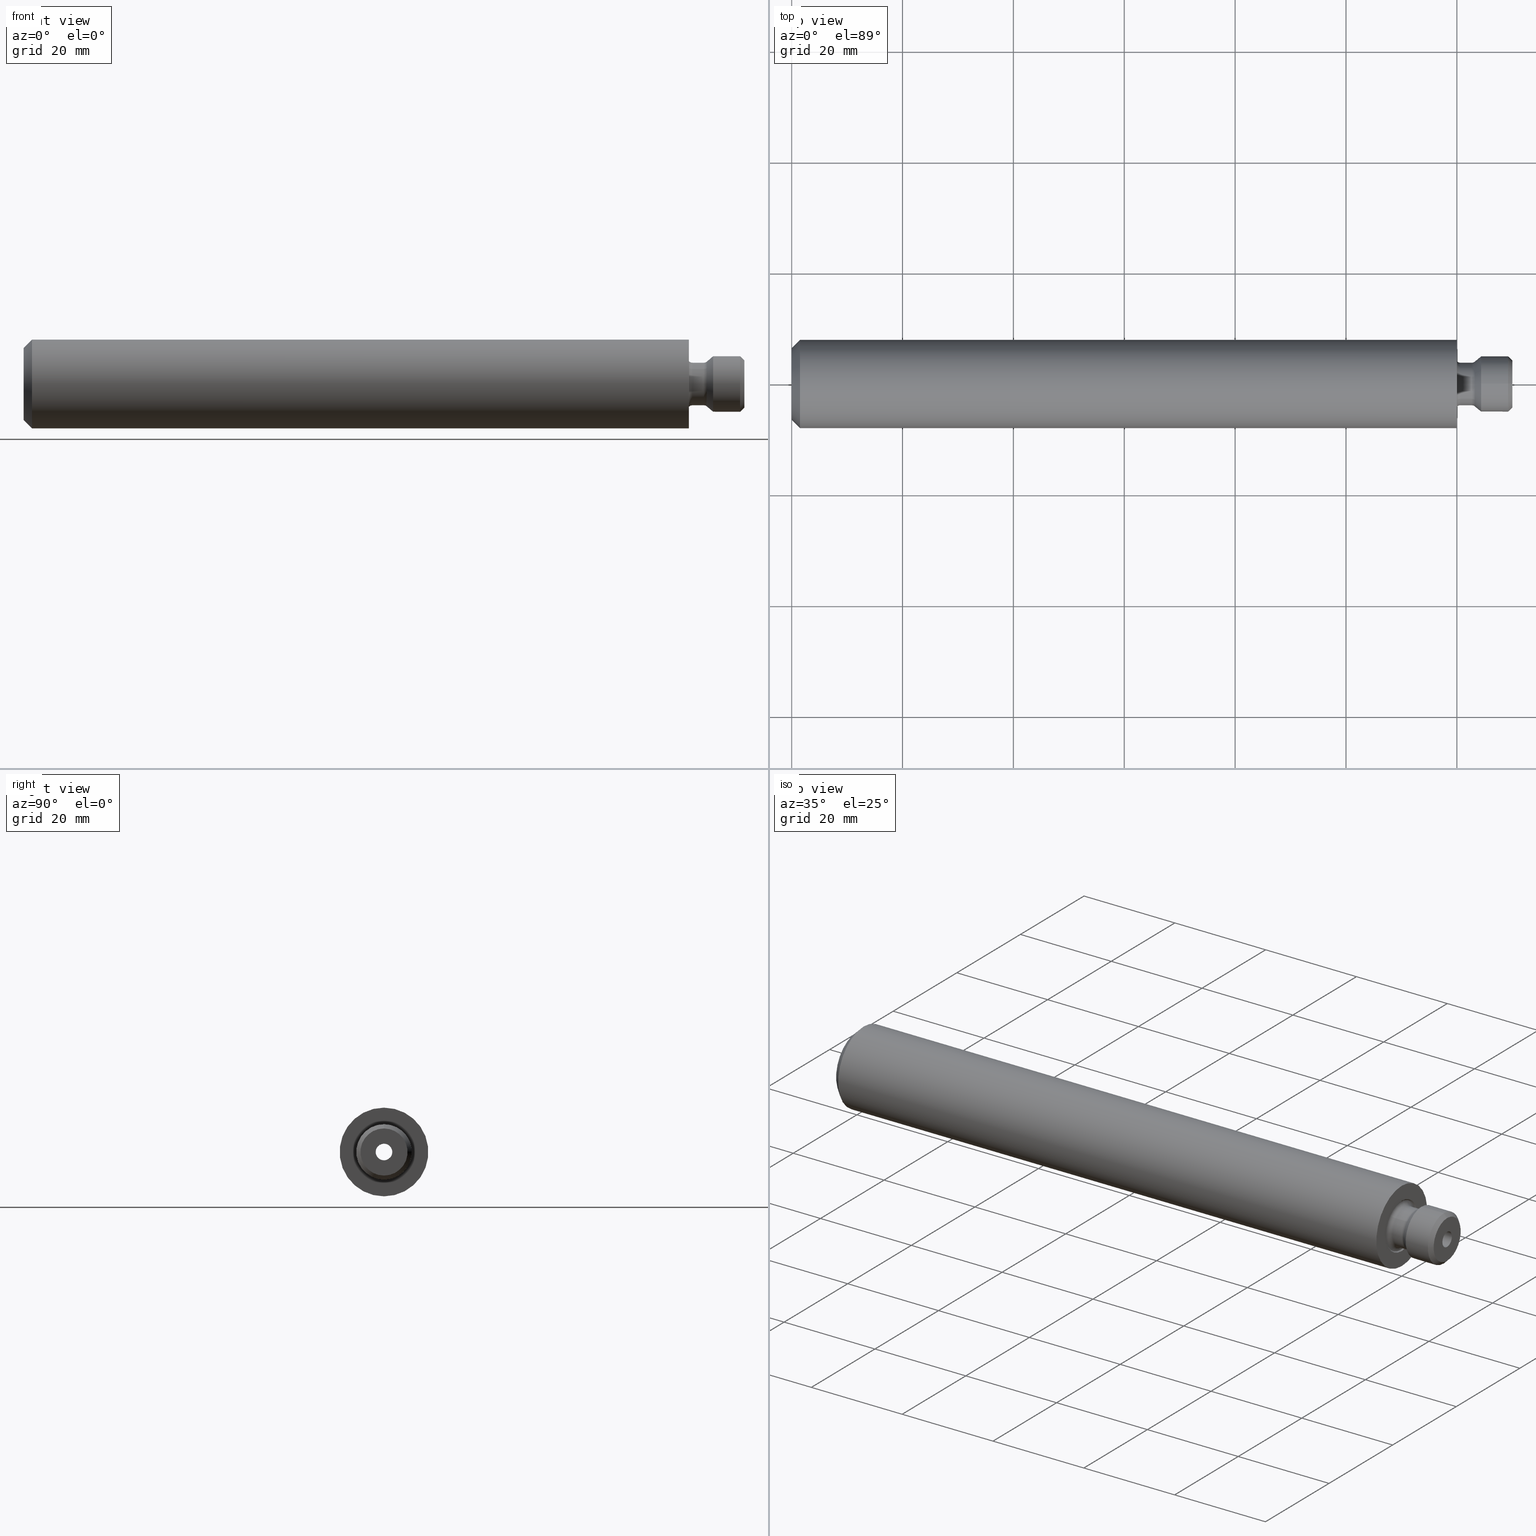
[diagram: canonical four-view strip — front | top / right | iso, engineering-drawing reading convention]
A machine part, canonical four-view strip (front | top / right | iso — engineering-drawing reading convention). The complete STEP part file that produces these views, byte-faithful:
ISO-10303-21;
HEADER;
FILE_DESCRIPTION (( 'STEP AP214' ),
    '1' );
FILE_NAME ('U16.HS0.K01.120.STEP',
    '2020-08-14T11:01:39',
    ( '' ),
    ( '' ),
    'SwSTEP 2.0',
    'SolidWorks 2017',
    '' );
FILE_SCHEMA (( 'AUTOMOTIVE_DESIGN' ));
ENDSEC;

DATA;
#1 = CARTESIAN_POINT ( 'NONE',  ( -120.0000000000000000, 2.499999999999985800, 0.0000000000000000000 ) ) ;
#2 = APPLICATION_CONTEXT ( 'automotive_design' ) ;
#3 = DIRECTION ( 'NONE',  ( -1.000000000000000000, 0.0000000000000000000, -0.0000000000000000000 ) ) ;
#4 = ORIENTED_EDGE ( 'NONE', *, *, #439, .F. ) ;
#5 = VERTEX_POINT ( 'NONE', #116 ) ;
#6 = EDGE_CURVE ( 'NONE', #234, #234, #353, .T. ) ;
#7 = APPLICATION_CONTEXT ( 'automotive_design' ) ;
#8 = AXIS2_PLACEMENT_3D ( 'NONE', #115, #39, #406 ) ;
#9 = CARTESIAN_POINT ( 'NONE',  ( -118.5000000000000000, 0.0000000000000000000, 0.0000000000000000000 ) ) ;
#10 = AXIS2_PLACEMENT_3D ( 'NONE', #202, #78, #38 ) ;
#11 = DIRECTION ( 'NONE',  ( 0.0000000000000000000, 0.0000000000000000000, -1.000000000000000000 ) ) ;
#12 = AXIS2_PLACEMENT_3D ( 'NONE', #349, #223, #247 ) ;
#13 = UNCERTAINTY_MEASURE_WITH_UNIT (LENGTH_MEASURE( 1.000000000000000100E-005 ), #424, 'distance_accuracy_value', 'NONE');
#14 = FACE_OUTER_BOUND ( 'NONE', #210, .T. ) ;
#15 = CONTEXT_DEPENDENT_SHAPE_REPRESENTATION ( #386, #413 ) ;
#16 = CIRCLE ( 'NONE', #124, 4.250000000000000000 ) ;
#17 = VERTEX_POINT ( 'NONE', #195 ) ;
#18 = EDGE_LOOP ( 'NONE', ( #220 ) ) ;
#19 = AXIS2_PLACEMENT_3D ( 'NONE', #283, #246, #491 ) ;
#20 = UNCERTAINTY_MEASURE_WITH_UNIT (LENGTH_MEASURE( 1.000000000000000100E-005 ), #254, 'distance_accuracy_value', 'NONE');
#21 = PRODUCT_DEFINITION ( 'UNKNOWN', '', #101, #29 ) ;
#22 = ORIENTED_EDGE ( 'NONE', *, *, #445, .T. ) ;
#23 = CIRCLE ( 'NONE', #414, 4.249999999999997300 ) ;
#24 = UNCERTAINTY_MEASURE_WITH_UNIT (LENGTH_MEASURE( 1.000000000000000100E-005 ), #380, 'distance_accuracy_value', 'NONE');
#25 = DIRECTION ( 'NONE',  ( 0.0000000000000000000, 0.7063617796963104200, 0.7078509985754494200 ) ) ;
#26 = CIRCLE ( 'NONE', #290, 2.499999999999985800 ) ;
#27 = FACE_OUTER_BOUND ( 'NONE', #229, .T. ) ;
#28 = EDGE_CURVE ( 'NONE', #474, #474, #529, .T. ) ;
#29 = PRODUCT_DEFINITION_CONTEXT ( 'detailed design', #90, 'design' ) ;
#30 = ADVANCED_FACE ( 'NONE', ( #50, #218 ), #357, .F. ) ;
#31 = DIRECTION ( 'NONE',  ( 0.0000000000000000000, 0.0000000000000000000, 1.000000000000000000 ) ) ;
#32 = EDGE_LOOP ( 'NONE', ( #523 ) ) ;
#33 = SHAPE_REPRESENTATION_RELATIONSHIP ( 'NONE' , 'NONE' ,  #168, #447 ) ;
#34 = EDGE_LOOP ( 'NONE', ( #315 ) ) ;
#35 = CARTESIAN_POINT ( 'NONE',  ( 19.57051663148333600, 0.0000000000000000000, 0.0000000000000000000 ) ) ;
#36 = DIRECTION ( 'NONE',  ( 0.0000000000000000000, -0.7063617796963105300, -0.7078509985754494200 ) ) ;
#37 =( GEOMETRIC_REPRESENTATION_CONTEXT ( 3 ) GLOBAL_UNCERTAINTY_ASSIGNED_CONTEXT ( ( #459 ) ) GLOBAL_UNIT_ASSIGNED_CONTEXT ( ( #288, #245, #257 ) ) REPRESENTATION_CONTEXT ( 'NONE', 'WORKASPACE' ) );
#38 = DIRECTION ( 'NONE',  ( 0.0000000000000000000, 0.0000000000000000000, 1.000000000000000000 ) ) ;
#39 = DIRECTION ( 'NONE',  ( 1.000000000000000000, 0.0000000000000000000, 0.0000000000000000000 ) ) ;
#40 = FACE_OUTER_BOUND ( 'NONE', #207, .T. ) ;
#41 = ITEM_DEFINED_TRANSFORMATION ( 'NONE', 'NONE', #191,  #264 ) ;
#42 = PRESENTATION_LAYER_ASSIGNMENT (  '', '', ( #151 ) ) ;
#43 = VERTEX_POINT ( 'NONE', #539 ) ;
#44 = CARTESIAN_POINT ( 'NONE',  ( -0.7500000000000006700, 0.0000000000000000000, -4.250000000000000000 ) ) ;
#45 =( NAMED_UNIT ( * ) PLANE_ANGLE_UNIT ( ) SI_UNIT ( $, .RADIAN. ) );
#46 = SURFACE_SIDE_STYLE ('',( #337 ) ) ;
#47 =( NAMED_UNIT ( * ) SI_UNIT ( $, .STERADIAN. ) SOLID_ANGLE_UNIT ( ) );
#48 = DIRECTION ( 'NONE',  ( -0.0000000000000000000, 0.0000000000000000000, 1.000000000000000000 ) ) ;
#49 =( NAMED_UNIT ( * ) PLANE_ANGLE_UNIT ( ) SI_UNIT ( $, .RADIAN. ) );
#50 = FACE_OUTER_BOUND ( 'NONE', #171, .T. ) ;
#51 = CIRCLE ( 'NONE', #524, 3.850000000000001000 ) ;
#52 = MECHANICAL_DESIGN_GEOMETRIC_PRESENTATION_REPRESENTATION (  '', ( #484 ), #128 ) ;
#53 =( NAMED_UNIT ( * ) PLANE_ANGLE_UNIT ( ) SI_UNIT ( $, .RADIAN. ) );
#54 = DIRECTION ( 'NONE',  ( 1.000000000000000000, 0.0000000000000000000, 0.0000000000000000000 ) ) ;
#55 = AXIS2_PLACEMENT_3D ( 'NONE', #178, #222, #304 ) ;
#56 = DIRECTION ( 'NONE',  ( -1.000000000000000000, -0.0000000000000000000, 0.0000000000000000000 ) ) ;
#57 = FACE_BOUND ( 'NONE', #34, .T. ) ;
#58 = PRODUCT ( 'U16.HS0.K01.120', 'U16.HS0.K01.120', '', ( #175 ) ) ;
#59 = EDGE_LOOP ( 'NONE', ( #360 ) ) ;
#60 = ORIENTED_EDGE ( 'NONE', *, *, #100, .T. ) ;
#61 = FACE_OUTER_BOUND ( 'NONE', #341, .T. ) ;
#62 = AXIS2_PLACEMENT_3D ( 'NONE', #464, #382, #307 ) ;
#63 = SHAPE_DEFINITION_REPRESENTATION ( #197, #516 ) ;
#64 = CARTESIAN_POINT ( 'NONE',  ( -6.375198412698429400, 0.0000000000000000000, 0.0000000000000000000 ) ) ;
#65 = EDGE_CURVE ( 'NONE', #548, #548, #26, .T. ) ;
#66 = CLOSED_SHELL ( 'NONE', ( #443, #236, #538, #531, #284, #274, #501, #336, #528, #540, #150, #156 ) ) ;
#67 = AXIS2_PLACEMENT_3D ( 'NONE', #193, #285, #543 ) ;
#68 = FACE_OUTER_BOUND ( 'NONE', #143, .T. ) ;
#69 = EDGE_LOOP ( 'NONE', ( #521 ) ) ;
#70 = VERTEX_POINT ( 'NONE', #408 ) ;
#71 = DIRECTION ( 'NONE',  ( -1.000000000000000000, -0.0000000000000000000, -0.0000000000000000000 ) ) ;
#72 = ORIENTED_EDGE ( 'NONE', *, *, #514, .T. ) ;
#73 =( LENGTH_UNIT ( ) NAMED_UNIT ( * ) SI_UNIT ( .MILLI., .METRE. ) );
#74 = DIRECTION ( 'NONE',  ( 0.0000000000000000000, 0.0000000000000000000, -1.000000000000000000 ) ) ;
#75 = AXIS2_PLACEMENT_3D ( 'NONE', #239, #508, #87 ) ;
#76 = CARTESIAN_POINT ( 'NONE',  ( -18.00000000000000400, 0.0000000000000000000, 0.0000000000000000000 ) ) ;
#77 = DIRECTION ( 'NONE',  ( -1.000000000000000000, -0.0000000000000000000, -0.0000000000000000000 ) ) ;
#78 = DIRECTION ( 'NONE',  ( -1.000000000000000000, -0.0000000000000000000, -0.0000000000000000000 ) ) ;
#79 = AXIS2_PLACEMENT_3D ( 'NONE', #132, #215, #544 ) ;
#80 = CARTESIAN_POINT ( 'NONE',  ( 24.44999999999999600, 3.531808898481553400, 3.539254992877247200 ) ) ;
#81 = CARTESIAN_POINT ( 'NONE',  ( 15.79999999999999900, 0.0000000000000000000, 0.0000000000000000000 ) ) ;
#82 = EDGE_CURVE ( 'NONE', #434, #434, #224, .T. ) ;
#83 = DIRECTION ( 'NONE',  ( 0.0000000000000000000, 0.0000000000000000000, 1.000000000000000000 ) ) ;
#84 = FACE_BOUND ( 'NONE', #470, .T. ) ;
#85 = FACE_BOUND ( 'NONE', #200, .T. ) ;
#86 = VERTEX_POINT ( 'NONE', #371 ) ;
#87 = DIRECTION ( 'NONE',  ( 1.000000000000000000, 0.0000000000000000000, 0.0000000000000000000 ) ) ;
#88 = AXIS2_PLACEMENT_3D ( 'NONE', #35, #446, #293 ) ;
#89 = DIRECTION ( 'NONE',  ( -1.000000000000000000, -0.0000000000000000000, -0.0000000000000000000 ) ) ;
#90 = APPLICATION_CONTEXT ( 'automotive_design' ) ;
#91 = DIRECTION ( 'NONE',  ( 1.000000000000000000, 0.0000000000000000000, 0.0000000000000000000 ) ) ;
#92 = APPLICATION_PROTOCOL_DEFINITION ( 'draft international standard', 'automotive_design', 1998, #90 ) ;
#93 = AXIS2_PLACEMENT_3D ( 'NONE', #363, #334, #280 ) ;
#94 = CARTESIAN_POINT ( 'NONE',  ( -120.0000000000000000, 0.0000000000000000000, 0.0000000000000000000 ) ) ;
#95 = ORIENTED_EDGE ( 'NONE', *, *, #82, .T. ) ;
#96 = EDGE_CURVE ( 'NONE', #300, #300, #16, .T. ) ;
#97 = AXIS2_PLACEMENT_3D ( 'NONE', #333, #281, #412 ) ;
#98 = ORIENTED_EDGE ( 'NONE', *, *, #411, .T. ) ;
#99 = VERTEX_POINT ( 'NONE', #160 ) ;
#100 = EDGE_CURVE ( 'NONE', #99, #99, #421, .T. ) ;
#101 = PRODUCT_DEFINITION_FORMATION_WITH_SPECIFIED_SOURCE ( 'ANY', '', #397, .NOT_KNOWN. ) ;
#102 = CIRCLE ( 'NONE', #103, 7.999999999999989300 ) ;
#103 = AXIS2_PLACEMENT_3D ( 'NONE', #9, #389, #308 ) ;
#104 = FACE_BOUND ( 'NONE', #530, .T. ) ;
#105 = ADVANCED_FACE ( 'NONE', ( #330, #347 ), #441, .F. ) ;
#106 = FACE_OUTER_BOUND ( 'NONE', #164, .T. ) ;
#107 = CARTESIAN_POINT ( 'NONE',  ( 19.86845502963189200, 0.0000000000000000000, 0.0000000000000000000 ) ) ;
#108 = AXIS2_PLACEMENT_3D ( 'NONE', #451, #534, #112 ) ;
#109 = ADVANCED_FACE ( 'NONE', ( #437, #162 ), #547, .T. ) ;
#110 = CARTESIAN_POINT ( 'NONE',  ( -19.05150608329822500, 0.0000000000000000000, -2.499999999999997300 ) ) ;
#111 = ORIENTED_EDGE ( 'NONE', *, *, #28, .T. ) ;
#112 = DIRECTION ( 'NONE',  ( 0.0000000000000000000, 0.0000000000000000000, -1.000000000000000000 ) ) ;
#113 = ORIENTED_EDGE ( 'NONE', *, *, #391, .T. ) ;
#114 = DIRECTION ( 'NONE',  ( 0.0000000000000000000, 0.7063617796963105300, 0.7078509985754494200 ) ) ;
#115 = CARTESIAN_POINT ( 'NONE',  ( -0.7500000000000006700, 0.0000000000000000000, 0.0000000000000000000 ) ) ;
#116 = CARTESIAN_POINT ( 'NONE',  ( 0.0000000000000000000, 0.0000000000000000000, -7.999999999999989300 ) ) ;
#117 = FILL_AREA_STYLE_COLOUR ( '', #189 ) ;
#118 = CARTESIAN_POINT ( 'NONE',  ( -120.0000000000000000, 0.0000000000000000000, 0.0000000000000000000 ) ) ;
#119 = DIRECTION ( 'NONE',  ( 0.0000000000000000000, 0.7063617796963105300, 0.7078509985754494200 ) ) ;
#120 = AXIS2_PLACEMENT_3D ( 'NONE', #473, #180, #520 ) ;
#121 = ORIENTED_EDGE ( 'NONE', *, *, #439, .T. ) ;
#122 = CYLINDRICAL_SURFACE ( 'NONE', #144, 5.000000000000000000 ) ;
#123 =( NAMED_UNIT ( * ) SI_UNIT ( $, .STERADIAN. ) SOLID_ANGLE_UNIT ( ) );
#124 = AXIS2_PLACEMENT_3D ( 'NONE', #351, #297, #431 ) ;
#125 =( NAMED_UNIT ( * ) SI_UNIT ( $, .STERADIAN. ) SOLID_ANGLE_UNIT ( ) );
#126 =( NAMED_UNIT ( * ) SI_UNIT ( $, .STERADIAN. ) SOLID_ANGLE_UNIT ( ) );
#127 = APPLICATION_CONTEXT ( 'automotive_design' ) ;
#128 =( GEOMETRIC_REPRESENTATION_CONTEXT ( 3 ) GLOBAL_UNCERTAINTY_ASSIGNED_CONTEXT ( ( #24 ) ) GLOBAL_UNIT_ASSIGNED_CONTEXT ( ( #380, #49, #125 ) ) REPRESENTATION_CONTEXT ( 'NONE', 'WORKASPACE' ) );
#129 = VERTEX_POINT ( 'NONE', #158 ) ;
#130 = DIRECTION ( 'NONE',  ( 0.0000000000000000000, 0.0000000000000000000, 1.000000000000000000 ) ) ;
#131 = ORIENTED_EDGE ( 'NONE', *, *, #65, .F. ) ;
#132 = CARTESIAN_POINT ( 'NONE',  ( 11.08730158730159100, 0.0000000000000000000, 0.0000000000000000000 ) ) ;
#133 = MECHANICAL_DESIGN_GEOMETRIC_PRESENTATION_REPRESENTATION (  '', ( #151 ), #381 ) ;
#134 = DIRECTION ( 'NONE',  ( -1.000000000000000000, -0.0000000000000000000, -0.0000000000000000000 ) ) ;
#135 = SHAPE_DEFINITION_REPRESENTATION ( #477, #168 ) ;
#136 = FACE_OUTER_BOUND ( 'NONE', #312, .T. ) ;
#137 = FACE_BOUND ( 'NONE', #138, .T. ) ;
#138 = EDGE_LOOP ( 'NONE', ( #390 ) ) ;
#139 = PRODUCT_DEFINITION ( 'UNKNOWN', '', #425, #149 ) ;
#140 = ORIENTED_EDGE ( 'NONE', *, *, #376, .F. ) ;
#141 = SHAPE_REPRESENTATION_RELATIONSHIP ( 'NONE' , 'NONE' ,  #516, #173 ) ;
#142 = STYLED_ITEM ( 'NONE', ( #433 ), #305 ) ;
#143 = EDGE_LOOP ( 'NONE', ( #479 ) ) ;
#144 = AXIS2_PLACEMENT_3D ( 'NONE', #377, #372, #119 ) ;
#145 = FACE_OUTER_BOUND ( 'NONE', #481, .T. ) ;
#146 = COLOUR_RGB ( '',0.6470588235294118000, 0.6196078431372549200, 0.5882352941176470800 ) ;
#147 = AXIS2_PLACEMENT_3D ( 'NONE', #325, #495, #287 ) ;
#148 = SURFACE_STYLE_FILL_AREA ( #232 ) ;
#149 = PRODUCT_DEFINITION_CONTEXT ( 'detailed design', #550, 'design' ) ;
#150 = ADVANCED_FACE ( 'NONE', ( #267, #136 ), #519, .T. ) ;
#151 = STYLED_ITEM ( 'NONE', ( #419 ), #269 ) ;
#152 = ADVANCED_FACE ( 'NONE', ( #85, #14 ), #170, .T. ) ;
#153 = CARTESIAN_POINT ( 'NONE',  ( 18.42305390033627100, 0.0000000000000000000, 4.037164445504818600 ) ) ;
#154 = EDGE_LOOP ( 'NONE', ( #249 ) ) ;
#155 =( NAMED_UNIT ( * ) SI_UNIT ( $, .STERADIAN. ) SOLID_ANGLE_UNIT ( ) );
#156 = ADVANCED_FACE ( 'NONE', ( #104, #409 ), #542, .T. ) ;
#157 =( GEOMETRIC_REPRESENTATION_CONTEXT ( 3 ) GLOBAL_UNCERTAINTY_ASSIGNED_CONTEXT ( ( #13 ) ) GLOBAL_UNIT_ASSIGNED_CONTEXT ( ( #424, #45, #123 ) ) REPRESENTATION_CONTEXT ( 'NONE', 'WORKASPACE' ) );
#158 = CARTESIAN_POINT ( 'NONE',  ( 25.19999999999999900, 1.059542669544466700, 1.061776497863174300 ) ) ;
#159 = UNCERTAINTY_MEASURE_WITH_UNIT (LENGTH_MEASURE( 1.000000000000000100E-005 ), #340, 'distance_accuracy_value', 'NONE');
#160 = CARTESIAN_POINT ( 'NONE',  ( 0.0000000000000000000, 0.0000000000000000000, -5.000000000000002700 ) ) ;
#161 = FACE_BOUND ( 'NONE', #198, .T. ) ;
#162 = FACE_OUTER_BOUND ( 'NONE', #272, .T. ) ;
#163 = DIRECTION ( 'NONE',  ( 1.000000000000000000, 0.0000000000000000000, 0.0000000000000000000 ) ) ;
#164 = EDGE_LOOP ( 'NONE', ( #428 ) ) ;
#165 = DIRECTION ( 'NONE',  ( 0.0000000000000000000, 0.0000000000000000000, 1.000000000000000000 ) ) ;
#166 = SURFACE_STYLE_USAGE ( .BOTH. , #378 ) ;
#167 = CARTESIAN_POINT ( 'NONE',  ( 15.00000000000000000, 5.000000000000000000, 0.0000000000000000000 ) ) ;
#168 = SHAPE_REPRESENTATION ( 'HM1-BG1.010.025_A', ( #264 ), #157 ) ;
#169 = FILL_AREA_STYLE_COLOUR ( '', #262 ) ;
#170 = CONICAL_SURFACE ( 'NONE', #19, 7.999999999999989300, 0.7853981633974509400 ) ;
#171 = EDGE_LOOP ( 'NONE', ( #60 ) ) ;
#172 = VERTEX_POINT ( 'NONE', #201 ) ;
#173 = ADVANCED_BREP_SHAPE_REPRESENTATION ( '', ( #269, #264 ), #37 ) ;
#174 = DIRECTION ( 'NONE',  ( 0.0000000000000000000, 0.0000000000000000000, -1.000000000000000000 ) ) ;
#175 = PRODUCT_CONTEXT ( 'NONE', #127, 'mechanical' ) ;
#176 = AXIS2_PLACEMENT_3D ( 'NONE', #532, #77, #165 ) ;
#177 =( REPRESENTATION_RELATIONSHIP ('NONE','NONE', #352, #168 ) REPRESENTATION_RELATIONSHIP_WITH_TRANSFORMATION ( #420 )SHAPE_REPRESENTATION_RELATIONSHIP( ) );
#178 = CARTESIAN_POINT ( 'NONE',  ( 0.7500000000000024400, 0.0000000000000000000, 0.0000000000000000000 ) ) ;
#179 = PRODUCT_DEFINITION_CONTEXT ( 'detailed design', #7, 'design' ) ;
#180 = DIRECTION ( 'NONE',  ( 1.000000000000000000, 0.0000000000000000000, 0.0000000000000000000 ) ) ;
#181 = EDGE_LOOP ( 'NONE', ( #4 ) ) ;
#182 = VERTEX_POINT ( 'NONE', #415 ) ;
#183 = EDGE_LOOP ( 'NONE', ( #22 ) ) ;
#184 = EDGE_CURVE ( 'NONE', #366, #366, #498, .T. ) ;
#185 = DIRECTION ( 'NONE',  ( 0.0000000000000000000, 0.0000000000000000000, -1.000000000000000000 ) ) ;
#186 = PRESENTATION_LAYER_ASSIGNMENT (  '', '', ( #216 ) ) ;
#187 = COLOUR_RGB ( '',0.6470588235294118000, 0.6196078431372549200, 0.5882352941176470800 ) ;
#188 = AXIS2_PLACEMENT_3D ( 'NONE', #326, #71, #365 ) ;
#189 = COLOUR_RGB ( '',0.5490196078431373000, 0.5372549019607842900, 0.5294117647058823600 ) ;
#190 = EDGE_LOOP ( 'NONE', ( #401 ) ) ;
#191 = AXIS2_PLACEMENT_3D ( 'NONE', #343, #385, #346 ) ;
#192 = ORIENTED_EDGE ( 'NONE', *, *, #514, .F. ) ;
#193 = CARTESIAN_POINT ( 'NONE',  ( 0.0000000000000000000, 1.500000000000000000, 0.0000000000000000000 ) ) ;
#194 = AXIS2_PLACEMENT_3D ( 'NONE', #410, #497, #291 ) ;
#195 = CARTESIAN_POINT ( 'NONE',  ( 15.00000000000000000, 0.0000000000000000000, 5.000000000000000000 ) ) ;
#196 = CIRCLE ( 'NONE', #301, 4.250000000000000000 ) ;
#197 = PRODUCT_DEFINITION_SHAPE ( 'NONE', 'NONE',  #21 ) ;
#198 = EDGE_LOOP ( 'NONE', ( #452 ) ) ;
#199 = CARTESIAN_POINT ( 'NONE',  ( 24.44999999999999600, 9.508899211970429500E-016, 7.781577171327633800E-017 ) ) ;
#200 = EDGE_LOOP ( 'NONE', ( #423 ) ) ;
#201 = CARTESIAN_POINT ( 'NONE',  ( 19.57051663148333600, 0.0000000000000000000, -5.000000000000000000 ) ) ;
#202 = CARTESIAN_POINT ( 'NONE',  ( -6.375198412698429400, 0.0000000000000000000, 0.0000000000000000000 ) ) ;
#203 = DIRECTION ( 'NONE',  ( 1.000000000000000000, 0.0000000000000000000, 0.0000000000000000000 ) ) ;
#204 = CARTESIAN_POINT ( 'NONE',  ( 0.0000000000000000000, 0.0000000000000000000, 0.0000000000000000000 ) ) ;
#205 = APPLICATION_PROTOCOL_DEFINITION ( 'draft international standard', 'automotive_design', 1998, #550 ) ;
#206 = CARTESIAN_POINT ( 'NONE',  ( -19.05150608329822500, 0.0000000000000000000, 0.0000000000000000000 ) ) ;
#207 = EDGE_LOOP ( 'NONE', ( #465 ) ) ;
#208 = CYLINDRICAL_SURFACE ( 'NONE', #10, 3.850000000000000100 ) ;
#209 = DIRECTION ( 'NONE',  ( 1.000000000000000000, 0.0000000000000000000, 0.0000000000000000000 ) ) ;
#210 = EDGE_LOOP ( 'NONE', ( #140 ) ) ;
#211 = FILL_AREA_STYLE ('',( #456 ) ) ;
#212 = FILL_AREA_STYLE_COLOUR ( '', #146 ) ;
#213 = CARTESIAN_POINT ( 'NONE',  ( -19.05150608329822500, 0.0000000000000000000, 0.0000000000000000000 ) ) ;
#214 = APPLICATION_PROTOCOL_DEFINITION ( 'draft international standard', 'automotive_design', 1998, #7 ) ;
#215 = DIRECTION ( 'NONE',  ( 1.000000000000000000, 0.0000000000000000000, 0.0000000000000000000 ) ) ;
#216 = STYLED_ITEM ( 'NONE', ( #271 ), #447 ) ;
#217 = DIRECTION ( 'NONE',  ( 1.000000000000000000, 0.0000000000000000000, 0.0000000000000000000 ) ) ;
#218 = FACE_BOUND ( 'NONE', #32, .T. ) ;
#219 = FACE_OUTER_BOUND ( 'NONE', #154, .T. ) ;
#220 = ORIENTED_EDGE ( 'NONE', *, *, #314, .T. ) ;
#221 = EDGE_LOOP ( 'NONE', ( #131 ) ) ;
#222 = DIRECTION ( 'NONE',  ( 1.000000000000000000, 0.0000000000000000000, 0.0000000000000000000 ) ) ;
#223 = DIRECTION ( 'NONE',  ( 1.000000000000000000, 0.0000000000000000000, 0.0000000000000000000 ) ) ;
#224 = CIRCLE ( 'NONE', #541, 1.500000000000000000 ) ;
#225 = CONICAL_SURFACE ( 'NONE', #310, 5.250000000000000000, 0.6981317007977334600 ) ;
#226 = ORIENTED_EDGE ( 'NONE', *, *, #483, .F. ) ;
#227 =( GEOMETRIC_REPRESENTATION_CONTEXT ( 3 ) GLOBAL_UNCERTAINTY_ASSIGNED_CONTEXT ( ( #472 ) ) GLOBAL_UNIT_ASSIGNED_CONTEXT ( ( #388, #298, #47 ) ) REPRESENTATION_CONTEXT ( 'NONE', 'WORKASPACE' ) );
#228 = AXIS2_PLACEMENT_3D ( 'NONE', #253, #517, #185 ) ;
#229 = EDGE_LOOP ( 'NONE', ( #526 ) ) ;
#230 = DIRECTION ( 'NONE',  ( 0.0000000000000000000, 0.0000000000000000000, -1.000000000000000000 ) ) ;
#231 = CYLINDRICAL_SURFACE ( 'NONE', #79, 4.249999999999998200 ) ;
#232 = FILL_AREA_STYLE ('',( #169 ) ) ;
#233 = AXIS2_PLACEMENT_3D ( 'NONE', #462, #418, #217 ) ;
#234 = VERTEX_POINT ( 'NONE', #368 ) ;
#235 = EDGE_LOOP ( 'NONE', ( #72 ) ) ;
#236 = ADVANCED_FACE ( 'NONE', ( #311, #309 ), #299, .F. ) ;
#237 = AXIS2_PLACEMENT_3D ( 'NONE', #505, #89, #251 ) ;
#238 = PLANE ( 'NONE',  #369 ) ;
#239 = CARTESIAN_POINT ( 'NONE',  ( 0.0000000000000000000, 0.0000000000000000000, 0.0000000000000000000 ) ) ;
#240 = ORIENTED_EDGE ( 'NONE', *, *, #483, .T. ) ;
#241 = FACE_OUTER_BOUND ( 'NONE', #59, .T. ) ;
#242 = MECHANICAL_DESIGN_GEOMETRIC_PRESENTATION_REPRESENTATION (  '', ( #216 ), #467 ) ;
#243 = PLANE ( 'NONE',  #67 ) ;
#244 = CARTESIAN_POINT ( 'NONE',  ( 0.0000000000000000000, 0.0000000000000000000, 1.500000000000000000 ) ) ;
#245 =( NAMED_UNIT ( * ) PLANE_ANGLE_UNIT ( ) SI_UNIT ( $, .RADIAN. ) );
#246 = DIRECTION ( 'NONE',  ( 1.000000000000000000, 0.0000000000000000000, 0.0000000000000000000 ) ) ;
#247 = DIRECTION ( 'NONE',  ( 0.0000000000000000000, 0.0000000000000000000, -1.000000000000000000 ) ) ;
#248 = DIRECTION ( 'NONE',  ( 1.000000000000000000, 0.0000000000000000000, 0.0000000000000000000 ) ) ;
#249 = ORIENTED_EDGE ( 'NONE', *, *, #6, .T. ) ;
#250 = FACE_OUTER_BOUND ( 'NONE', #303, .T. ) ;
#251 = DIRECTION ( 'NONE',  ( 0.0000000000000000000, 0.0000000000000000000, 1.000000000000000000 ) ) ;
#252 = ORIENTED_EDGE ( 'NONE', *, *, #411, .F. ) ;
#253 = CARTESIAN_POINT ( 'NONE',  ( 11.08730158730159100, 0.0000000000000000000, 0.0000000000000000000 ) ) ;
#254 =( LENGTH_UNIT ( ) NAMED_UNIT ( * ) SI_UNIT ( .MILLI., .METRE. ) );
#255 =( NAMED_UNIT ( * ) SI_UNIT ( $, .STERADIAN. ) SOLID_ANGLE_UNIT ( ) );
#256 = PRODUCT_RELATED_PRODUCT_CATEGORY ( 'part', '', ( #58 ) ) ;
#257 =( NAMED_UNIT ( * ) SI_UNIT ( $, .STERADIAN. ) SOLID_ANGLE_UNIT ( ) );
#258 = ORIENTED_EDGE ( 'NONE', *, *, #96, .F. ) ;
#259 =( GEOMETRIC_REPRESENTATION_CONTEXT ( 3 ) GLOBAL_UNCERTAINTY_ASSIGNED_CONTEXT ( ( #20 ) ) GLOBAL_UNIT_ASSIGNED_CONTEXT ( ( #254, #296, #126 ) ) REPRESENTATION_CONTEXT ( 'NONE', 'WORKASPACE' ) );
#260 = PRODUCT_CONTEXT ( 'NONE', #510, 'mechanical' ) ;
#261 = CIRCLE ( 'NONE', #266, 4.650000000000000400 ) ;
#262 = COLOUR_RGB ( '',0.5490196078431373000, 0.5372549019607842900, 0.5294117647058823600 ) ;
#263 = EDGE_LOOP ( 'NONE', ( #475 ) ) ;
#264 = AXIS2_PLACEMENT_3D ( 'NONE', #460, #130, #209 ) ;
#265 = PRODUCT_DEFINITION_SHAPE ( 'NONE', 'NONE',  #552 ) ;
#266 = AXIS2_PLACEMENT_3D ( 'NONE', #426, #379, #549 ) ;
#267 = FACE_BOUND ( 'NONE', #317, .T. ) ;
#268 = FACE_OUTER_BOUND ( 'NONE', #18, .T. ) ;
#269 = MANIFOLD_SOLID_BREP ( 'Rotation1', #318 ) ;
#270 = AXIS2_PLACEMENT_3D ( 'NONE', #319, #440, #527 ) ;
#271 = PRESENTATION_STYLE_ASSIGNMENT (( #503 ) ) ;
#272 = EDGE_LOOP ( 'NONE', ( #192 ) ) ;
#273 = DIRECTION ( 'NONE',  ( -1.000000000000000000, -0.0000000000000000000, 0.0000000000000000000 ) ) ;
#274 = ADVANCED_FACE ( 'NONE', ( #545, #84 ), #238, .F. ) ;
#275 = EDGE_CURVE ( 'NONE', #422, #422, #469, .T. ) ;
#276 = TOROIDAL_SURFACE ( 'NONE', #237, 4.650000000000000400, 0.7999999999999994900 ) ;
#277 = ORIENTED_EDGE ( 'NONE', *, *, #362, .F. ) ;
#278 = VERTEX_POINT ( 'NONE', #370 ) ;
#279 = SURFACE_SIDE_STYLE ('',( #358 ) ) ;
#280 = DIRECTION ( 'NONE',  ( 0.0000000000000000000, 0.0000000000000000000, -1.000000000000000000 ) ) ;
#281 = DIRECTION ( 'NONE',  ( -1.000000000000000000, -0.0000000000000000000, -0.0000000000000000000 ) ) ;
#282 = ADVANCED_FACE ( 'NONE', ( #57, #68 ), #348, .T. ) ;
#283 = CARTESIAN_POINT ( 'NONE',  ( -118.5000000000000000, 0.0000000000000000000, 0.0000000000000000000 ) ) ;
#284 = ADVANCED_FACE ( 'NONE', ( #504, #478 ), #276, .F. ) ;
#285 = DIRECTION ( 'NONE',  ( 1.000000000000000000, 0.0000000000000000000, 0.0000000000000000000 ) ) ;
#286 = DIRECTION ( 'NONE',  ( 1.000000000000000000, 0.0000000000000000000, 0.0000000000000000000 ) ) ;
#287 = DIRECTION ( 'NONE',  ( 0.0000000000000000000, 0.0000000000000000000, 1.000000000000000000 ) ) ;
#288 =( LENGTH_UNIT ( ) NAMED_UNIT ( * ) SI_UNIT ( .MILLI., .METRE. ) );
#289 = FACE_BOUND ( 'NONE', #355, .T. ) ;
#290 = AXIS2_PLACEMENT_3D ( 'NONE', #118, #163, #74 ) ;
#291 = DIRECTION ( 'NONE',  ( 0.0000000000000000000, 0.0000000000000000000, 1.000000000000000000 ) ) ;
#292 = ORIENTED_EDGE ( 'NONE', *, *, #493, .T. ) ;
#293 = DIRECTION ( 'NONE',  ( 0.0000000000000000000, 0.0000000000000000000, -1.000000000000000000 ) ) ;
#294 = ORIENTED_EDGE ( 'NONE', *, *, #376, .T. ) ;
#295 = UNCERTAINTY_MEASURE_WITH_UNIT (LENGTH_MEASURE( 1.000000000000000100E-005 ), #73, 'distance_accuracy_value', 'NONE');
#296 =( NAMED_UNIT ( * ) PLANE_ANGLE_UNIT ( ) SI_UNIT ( $, .RADIAN. ) );
#297 = DIRECTION ( 'NONE',  ( -1.000000000000000000, -0.0000000000000000000, -0.0000000000000000000 ) ) ;
#298 =( NAMED_UNIT ( * ) PLANE_ANGLE_UNIT ( ) SI_UNIT ( $, .RADIAN. ) );
#299 = CYLINDRICAL_SURFACE ( 'NONE', #194, 1.500000000000000000 ) ;
#300 = VERTEX_POINT ( 'NONE', #496 ) ;
#301 = AXIS2_PLACEMENT_3D ( 'NONE', #350, #56, #512 ) ;
#302 = SURFACE_STYLE_USAGE ( .BOTH. , #46 ) ;
#303 = EDGE_LOOP ( 'NONE', ( #121 ) ) ;
#304 = DIRECTION ( 'NONE',  ( 0.0000000000000000000, 0.0000000000000000000, -1.000000000000000000 ) ) ;
#305 = MANIFOLD_SOLID_BREP ( 'Rotation1', #66 ) ;
#306 = PRODUCT_CONTEXT ( 'NONE', #2, 'mechanical' ) ;
#307 = DIRECTION ( 'NONE',  ( 0.0000000000000000000, 0.7063617796963105300, 0.7078509985754494200 ) ) ;
#308 = DIRECTION ( 'NONE',  ( 0.0000000000000000000, 0.0000000000000000000, -1.000000000000000000 ) ) ;
#309 = FACE_OUTER_BOUND ( 'NONE', #402, .T. ) ;
#310 = AXIS2_PLACEMENT_3D ( 'NONE', #107, #438, #230 ) ;
#311 = FACE_OUTER_BOUND ( 'NONE', #455, .T. ) ;
#312 = EDGE_LOOP ( 'NONE', ( #375 ) ) ;
#313 = CONICAL_SURFACE ( 'NONE', #55, 5.000000000000000000, 0.7853981633974466100 ) ;
#314 = EDGE_CURVE ( 'NONE', #374, #374, #485, .T. ) ;
#315 = ORIENTED_EDGE ( 'NONE', *, *, #65, .T. ) ;
#316 = MECHANICAL_DESIGN_GEOMETRIC_PRESENTATION_REPRESENTATION (  '', ( #142 ), #259 ) ;
#317 = EDGE_LOOP ( 'NONE', ( #113 ) ) ;
#318 = CLOSED_SHELL ( 'NONE', ( #105, #282, #152, #109, #324, #30, #332, #321 ) ) ;
#319 = CARTESIAN_POINT ( 'NONE',  ( 15.00000000000000000, 0.0000000000000000000, 0.0000000000000000000 ) ) ;
#320 = PRODUCT_DEFINITION_FORMATION_WITH_SPECIFIED_SOURCE ( 'ANY', '', #58, .NOT_KNOWN. ) ;
#321 = ADVANCED_FACE ( 'NONE', ( #535, #161 ), #399, .F. ) ;
#322 = EDGE_LOOP ( 'NONE', ( #404 ) ) ;
#323 = CYLINDRICAL_SURFACE ( 'NONE', #468, 5.000000000000000000 ) ;
#324 = ADVANCED_FACE ( 'NONE', ( #513, #289 ), #387, .T. ) ;
#325 = CARTESIAN_POINT ( 'NONE',  ( 17.90882381258704100, 0.0000000000000000000, 0.0000000000000000000 ) ) ;
#326 = CARTESIAN_POINT ( 'NONE',  ( 0.7500000000000024400, 0.0000000000000000000, 0.0000000000000000000 ) ) ;
#327 = DIRECTION ( 'NONE',  ( -1.000000000000000000, -0.0000000000000000000, -0.0000000000000000000 ) ) ;
#328 = PRODUCT_RELATED_PRODUCT_CATEGORY ( 'part', '', ( #518 ) ) ;
#329 = DIRECTION ( 'NONE',  ( 0.0000000000000000000, 0.0000000000000000000, -1.000000000000000000 ) ) ;
#330 = FACE_OUTER_BOUND ( 'NONE', #322, .T. ) ;
#331 = CIRCLE ( 'NONE', #88, 5.000000000000000000 ) ;
#332 = ADVANCED_FACE ( 'NONE', ( #145, #40 ), #231, .F. ) ;
#333 = CARTESIAN_POINT ( 'NONE',  ( 17.90882381258704100, 0.0000000000000000000, 0.0000000000000000000 ) ) ;
#334 = DIRECTION ( 'NONE',  ( 1.000000000000000000, 0.0000000000000000000, 0.0000000000000000000 ) ) ;
#335 = DIRECTION ( 'NONE',  ( -1.000000000000000000, -0.0000000000000000000, -0.0000000000000000000 ) ) ;
#336 = ADVANCED_FACE ( 'NONE', ( #373, #392 ), #313, .T. ) ;
#337 = SURFACE_STYLE_FILL_AREA ( #211 ) ;
#338 = SHAPE_DEFINITION_REPRESENTATION ( #432, #352 ) ;
#339 = CIRCLE ( 'NONE', #270, 5.000000000000000000 ) ;
#340 =( LENGTH_UNIT ( ) NAMED_UNIT ( * ) SI_UNIT ( .MILLI., .METRE. ) );
#341 = EDGE_LOOP ( 'NONE', ( #490 ) ) ;
#342 = DIRECTION ( 'NONE',  ( -1.000000000000000000, 0.0000000000000000000, 0.0000000000000000000 ) ) ;
#343 = CARTESIAN_POINT ( 'NONE',  ( 0.0000000000000000000, 0.0000000000000000000, 0.0000000000000000000 ) ) ;
#344 = DIRECTION ( 'NONE',  ( 0.0000000000000000000, 0.0000000000000000000, -1.000000000000000000 ) ) ;
#345 = SURFACE_SIDE_STYLE ('',( #525 ) ) ;
#346 = DIRECTION ( 'NONE',  ( 1.000000000000000000, 0.0000000000000000000, 0.0000000000000000000 ) ) ;
#347 = FACE_OUTER_BOUND ( 'NONE', #221, .T. ) ;
#348 = PLANE ( 'NONE',  #537 ) ;
#349 = CARTESIAN_POINT ( 'NONE',  ( 0.0000000000000000000, 0.0000000000000000000, 0.0000000000000000000 ) ) ;
#350 = CARTESIAN_POINT ( 'NONE',  ( 25.19999999999999900, 9.508899211970429500E-016, 7.781577171327633800E-017 ) ) ;
#351 = CARTESIAN_POINT ( 'NONE',  ( 0.0000000000000000000, 0.0000000000000000000, 0.0000000000000000000 ) ) ;
#352 = SHAPE_REPRESENTATION ( 'U16.HS0.K01.120', ( #75, #191, #233 ), #227 ) ;
#353 = CIRCLE ( 'NONE', #147, 3.849999999999999600 ) ;
#354 = FACE_OUTER_BOUND ( 'NONE', #500, .T. ) ;
#355 = EDGE_LOOP ( 'NONE', ( #515 ) ) ;
#356 = ORIENTED_EDGE ( 'NONE', *, *, #362, .T. ) ;
#357 = CONICAL_SURFACE ( 'NONE', #93, 4.250000000000000000, 0.7853981633974511700 ) ;
#358 = SURFACE_STYLE_FILL_AREA ( #407 ) ;
#359 = CIRCLE ( 'NONE', #488, 1.500000000000000200 ) ;
#360 = ORIENTED_EDGE ( 'NONE', *, *, #436, .F. ) ;
#361 = EDGE_LOOP ( 'NONE', ( #294 ) ) ;
#362 = EDGE_CURVE ( 'NONE', #480, #480, #261, .T. ) ;
#363 = CARTESIAN_POINT ( 'NONE',  ( -0.7500000000000006700, 0.0000000000000000000, 0.0000000000000000000 ) ) ;
#364 = PRODUCT_DEFINITION ( 'UNKNOWN', '', #320, #179 ) ;
#365 = DIRECTION ( 'NONE',  ( 0.0000000000000000000, 0.0000000000000000000, 1.000000000000000000 ) ) ;
#366 = VERTEX_POINT ( 'NONE', #153 ) ;
#367 =( NAMED_UNIT ( * ) PLANE_ANGLE_UNIT ( ) SI_UNIT ( $, .RADIAN. ) );
#368 = CARTESIAN_POINT ( 'NONE',  ( 17.90882381258704100, 0.0000000000000000000, 3.849999999999999600 ) ) ;
#369 = AXIS2_PLACEMENT_3D ( 'NONE', #167, #3, #48 ) ;
#370 = CARTESIAN_POINT ( 'NONE',  ( -118.5000000000000000, 0.0000000000000000000, -7.999999999999989300 ) ) ;
#371 = CARTESIAN_POINT ( 'NONE',  ( 25.19999999999999900, 3.002037563709321100, 3.008366743945660300 ) ) ;
#372 = DIRECTION ( 'NONE',  ( -1.000000000000000000, -0.0000000000000000000, 0.0000000000000000000 ) ) ;
#373 = FACE_BOUND ( 'NONE', #506, .T. ) ;
#374 = VERTEX_POINT ( 'NONE', #80 ) ;
#375 = ORIENTED_EDGE ( 'NONE', *, *, #314, .F. ) ;
#376 = EDGE_CURVE ( 'NONE', #278, #278, #102, .T. ) ;
#377 = CARTESIAN_POINT ( 'NONE',  ( 11.48902577285627300, 9.508899211970429500E-016, 7.781577171327633800E-017 ) ) ;
#378 = SURFACE_SIDE_STYLE ('',( #148 ) ) ;
#379 = DIRECTION ( 'NONE',  ( -1.000000000000000000, -0.0000000000000000000, -0.0000000000000000000 ) ) ;
#380 =( LENGTH_UNIT ( ) NAMED_UNIT ( * ) SI_UNIT ( .MILLI., .METRE. ) );
#381 =( GEOMETRIC_REPRESENTATION_CONTEXT ( 3 ) GLOBAL_UNCERTAINTY_ASSIGNED_CONTEXT ( ( #295 ) ) GLOBAL_UNIT_ASSIGNED_CONTEXT ( ( #73, #367, #155 ) ) REPRESENTATION_CONTEXT ( 'NONE', 'WORKASPACE' ) );
#382 = DIRECTION ( 'NONE',  ( -1.000000000000000000, -0.0000000000000000000, 0.0000000000000000000 ) ) ;
#383 = EDGE_LOOP ( 'NONE', ( #292 ) ) ;
#384 = FACE_OUTER_BOUND ( 'NONE', #383, .T. ) ;
#385 = DIRECTION ( 'NONE',  ( 0.0000000000000000000, 0.0000000000000000000, 1.000000000000000000 ) ) ;
#386 =( REPRESENTATION_RELATIONSHIP ('NONE','NONE', #352, #516 ) REPRESENTATION_RELATIONSHIP_WITH_TRANSFORMATION ( #41 )SHAPE_REPRESENTATION_RELATIONSHIP( ) );
#387 = PLANE ( 'NONE',  #449 ) ;
#388 =( LENGTH_UNIT ( ) NAMED_UNIT ( * ) SI_UNIT ( .MILLI., .METRE. ) );
#389 = DIRECTION ( 'NONE',  ( 1.000000000000000000, 0.0000000000000000000, 0.0000000000000000000 ) ) ;
#390 = ORIENTED_EDGE ( 'NONE', *, *, #82, .F. ) ;
#391 = EDGE_CURVE ( 'NONE', #86, #86, #196, .T. ) ;
#392 = FACE_OUTER_BOUND ( 'NONE', #190, .T. ) ;
#393 = EDGE_LOOP ( 'NONE', ( #240 ) ) ;
#394 = CIRCLE ( 'NONE', #461, 6.499999999999979600 ) ;
#395 = PRESENTATION_LAYER_ASSIGNMENT (  '', '', ( #484 ) ) ;
#396 = EDGE_CURVE ( 'NONE', #182, #182, #394, .T. ) ;
#397 = PRODUCT ( 'HM1-U16.001.120_A', 'HM1-U16.001.120_A', '', ( #306 ) ) ;
#398 = PRESENTATION_LAYER_ASSIGNMENT (  '', '', ( #142 ) ) ;
#399 = CONICAL_SURFACE ( 'NONE', #405, 2.499999999999997300, 1.029744258676657600 ) ;
#400 = EDGE_LOOP ( 'NONE', ( #277 ) ) ;
#401 = ORIENTED_EDGE ( 'NONE', *, *, #436, .T. ) ;
#402 = EDGE_LOOP ( 'NONE', ( #95 ) ) ;
#403 = TOROIDAL_SURFACE ( 'NONE', #97, 4.650000000000000400, 0.8000000000000000400 ) ;
#404 = ORIENTED_EDGE ( 'NONE', *, *, #275, .T. ) ;
#405 = AXIS2_PLACEMENT_3D ( 'NONE', #206, #91, #417 ) ;
#406 = DIRECTION ( 'NONE',  ( 0.0000000000000000000, 0.0000000000000000000, -1.000000000000000000 ) ) ;
#407 = FILL_AREA_STYLE ('',( #117 ) ) ;
#408 = CARTESIAN_POINT ( 'NONE',  ( -18.00000000000000400, 0.0000000000000000000, -4.249999999999997300 ) ) ;
#409 = FACE_OUTER_BOUND ( 'NONE', #463, .T. ) ;
#410 = CARTESIAN_POINT ( 'NONE',  ( -6.375198412698429400, 0.0000000000000000000, 0.0000000000000000000 ) ) ;
#411 = EDGE_CURVE ( 'NONE', #129, #129, #359, .T. ) ;
#412 = DIRECTION ( 'NONE',  ( 0.0000000000000000000, 0.0000000000000000000, 1.000000000000000000 ) ) ;
#413 = PRODUCT_DEFINITION_SHAPE ( 'NONE', 'NONE',  #551 ) ;
#414 = AXIS2_PLACEMENT_3D ( 'NONE', #76, #248, #329 ) ;
#415 = CARTESIAN_POINT ( 'NONE',  ( -120.0000000000000000, 0.0000000000000000000, -6.499999999999979600 ) ) ;
#416 = APPLICATION_PROTOCOL_DEFINITION ( 'draft international standard', 'automotive_design', 1998, #2 ) ;
#417 = DIRECTION ( 'NONE',  ( 0.0000000000000000000, 0.0000000000000000000, -1.000000000000000000 ) ) ;
#418 = DIRECTION ( 'NONE',  ( 0.0000000000000000000, -0.7063617796963105300, 0.7078509985754494200 ) ) ;
#419 = PRESENTATION_STYLE_ASSIGNMENT (( #448 ) ) ;
#420 = ITEM_DEFINED_TRANSFORMATION ( 'NONE', 'NONE', #233,  #264 ) ;
#421 = CIRCLE ( 'NONE', #12, 5.000000000000002700 ) ;
#422 = VERTEX_POINT ( 'NONE', #110 ) ;
#423 = ORIENTED_EDGE ( 'NONE', *, *, #396, .T. ) ;
#424 =( LENGTH_UNIT ( ) NAMED_UNIT ( * ) SI_UNIT ( .MILLI., .METRE. ) );
#425 = PRODUCT_DEFINITION_FORMATION_WITH_SPECIFIED_SOURCE ( 'ANY', '', #518, .NOT_KNOWN. ) ;
#426 = CARTESIAN_POINT ( 'NONE',  ( 15.00000000000000000, 0.0000000000000000000, 0.0000000000000000000 ) ) ;
#427 = APPLICATION_PROTOCOL_DEFINITION ( 'draft international standard', 'automotive_design', 1998, #510 ) ;
#428 = ORIENTED_EDGE ( 'NONE', *, *, #6, .F. ) ;
#429 = DIRECTION ( 'NONE',  ( 1.000000000000000000, 0.0000000000000000000, 0.0000000000000000000 ) ) ;
#430 = DIRECTION ( 'NONE',  ( 0.0000000000000000000, 0.0000000000000000000, 1.000000000000000000 ) ) ;
#431 = DIRECTION ( 'NONE',  ( 0.0000000000000000000, 0.0000000000000000000, 1.000000000000000000 ) ) ;
#432 = PRODUCT_DEFINITION_SHAPE ( 'NONE', 'NONE',  #364 ) ;
#433 = PRESENTATION_STYLE_ASSIGNMENT (( #302 ) ) ;
#434 = VERTEX_POINT ( 'NONE', #244 ) ;
#435 = AXIS2_PLACEMENT_3D ( 'NONE', #494, #286, #36 ) ;
#436 = EDGE_CURVE ( 'NONE', #507, #507, #442, .T. ) ;
#437 = FACE_OUTER_BOUND ( 'NONE', #361, .T. ) ;
#438 = DIRECTION ( 'NONE',  ( 1.000000000000000000, 0.0000000000000000000, 0.0000000000000000000 ) ) ;
#439 = EDGE_CURVE ( 'NONE', #17, #17, #339, .T. ) ;
#440 = DIRECTION ( 'NONE',  ( -1.000000000000000000, -0.0000000000000000000, -0.0000000000000000000 ) ) ;
#441 = CYLINDRICAL_SURFACE ( 'NONE', #228, 2.499999999999991600 ) ;
#442 = CIRCLE ( 'NONE', #188, 5.000000000000000000 ) ;
#443 = ADVANCED_FACE ( 'NONE', ( #522, #61 ), #225, .T. ) ;
#444 = AXIS2_PLACEMENT_3D ( 'NONE', #466, #83, #511 ) ;
#445 = EDGE_CURVE ( 'NONE', #70, #70, #23, .T. ) ;
#446 = DIRECTION ( 'NONE',  ( 1.000000000000000000, 0.0000000000000000000, 0.0000000000000000000 ) ) ;
#447 = ADVANCED_BREP_SHAPE_REPRESENTATION ( '', ( #305, #264 ), #157 ) ;
#448 = SURFACE_STYLE_USAGE ( .BOTH. , #279 ) ;
#449 = AXIS2_PLACEMENT_3D ( 'NONE', #502, #203, #174 ) ;
#450 = CARTESIAN_POINT ( 'NONE',  ( 0.7500000000000024400, 0.0000000000000000000, 5.000000000000000000 ) ) ;
#451 = CARTESIAN_POINT ( 'NONE',  ( 0.0000000000000000000, 0.0000000000000000000, 0.0000000000000000000 ) ) ;
#452 = ORIENTED_EDGE ( 'NONE', *, *, #275, .F. ) ;
#453 = CIRCLE ( 'NONE', #108, 7.999999999999989300 ) ;
#454 = APPLICATION_PROTOCOL_DEFINITION ( 'draft international standard', 'automotive_design', 1998, #127 ) ;
#455 = EDGE_LOOP ( 'NONE', ( #252 ) ) ;
#456 = FILL_AREA_STYLE_COLOUR ( '', #187 ) ;
#457 = FILL_AREA_STYLE ('',( #212 ) ) ;
#458 = DIRECTION ( 'NONE',  ( 0.0000000000000000000, 0.0000000000000000000, 1.000000000000000000 ) ) ;
#459 = UNCERTAINTY_MEASURE_WITH_UNIT (LENGTH_MEASURE( 1.000000000000000100E-005 ), #288, 'distance_accuracy_value', 'NONE');
#460 = CARTESIAN_POINT ( 'NONE',  ( 0.0000000000000000000, 0.0000000000000000000, 0.0000000000000000000 ) ) ;
#461 = AXIS2_PLACEMENT_3D ( 'NONE', #94, #429, #11 ) ;
#462 = CARTESIAN_POINT ( 'NONE',  ( -15.19999999999999900, -6.181222932588256700E-016, -7.267542687441896900E-016 ) ) ;
#463 = EDGE_LOOP ( 'NONE', ( #486 ) ) ;
#464 = CARTESIAN_POINT ( 'NONE',  ( 24.44999999999999600, 9.508899211970429500E-016, 7.781577171327633800E-017 ) ) ;
#465 = ORIENTED_EDGE ( 'NONE', *, *, #445, .F. ) ;
#466 = CARTESIAN_POINT ( 'NONE',  ( 0.0000000000000000000, 0.0000000000000000000, 0.0000000000000000000 ) ) ;
#467 =( GEOMETRIC_REPRESENTATION_CONTEXT ( 3 ) GLOBAL_UNCERTAINTY_ASSIGNED_CONTEXT ( ( #159 ) ) GLOBAL_UNIT_ASSIGNED_CONTEXT ( ( #340, #53, #255 ) ) REPRESENTATION_CONTEXT ( 'NONE', 'WORKASPACE' ) );
#468 = AXIS2_PLACEMENT_3D ( 'NONE', #64, #335, #31 ) ;
#469 = CIRCLE ( 'NONE', #499, 2.499999999999997300 ) ;
#470 = EDGE_LOOP ( 'NONE', ( #356 ) ) ;
#471 = PRESENTATION_STYLE_ASSIGNMENT (( #166 ) ) ;
#472 = UNCERTAINTY_MEASURE_WITH_UNIT (LENGTH_MEASURE( 1.000000000000000100E-005 ), #388, 'distance_accuracy_value', 'NONE');
#473 = CARTESIAN_POINT ( 'NONE',  ( 11.08730158730159100, 0.0000000000000000000, 0.0000000000000000000 ) ) ;
#474 = VERTEX_POINT ( 'NONE', #44 ) ;
#475 = ORIENTED_EDGE ( 'NONE', *, *, #184, .F. ) ;
#476 = AXIS2_PLACEMENT_3D ( 'NONE', #199, #536, #114 ) ;
#477 = PRODUCT_DEFINITION_SHAPE ( 'NONE', 'NONE',  #139 ) ;
#478 = FACE_OUTER_BOUND ( 'NONE', #393, .T. ) ;
#479 = ORIENTED_EDGE ( 'NONE', *, *, #396, .F. ) ;
#480 = VERTEX_POINT ( 'NONE', #533 ) ;
#481 = EDGE_LOOP ( 'NONE', ( #111 ) ) ;
#482 = CARTESIAN_POINT ( 'NONE',  ( 25.19999999999999900, 9.508899211970429500E-016, 7.781577171327633800E-017 ) ) ;
#483 = EDGE_CURVE ( 'NONE', #43, #43, #51, .T. ) ;
#484 = STYLED_ITEM ( 'NONE', ( #471 ), #173 ) ;
#485 = CIRCLE ( 'NONE', #62, 5.000000000000000000 ) ;
#486 = ORIENTED_EDGE ( 'NONE', *, *, #391, .F. ) ;
#487 = FACE_OUTER_BOUND ( 'NONE', #69, .T. ) ;
#488 = AXIS2_PLACEMENT_3D ( 'NONE', #482, #273, #25 ) ;
#489 = CARTESIAN_POINT ( 'NONE',  ( -120.0000000000000000, 0.0000000000000000000, -2.499999999999985800 ) ) ;
#490 = ORIENTED_EDGE ( 'NONE', *, *, #493, .F. ) ;
#491 = DIRECTION ( 'NONE',  ( 0.0000000000000000000, 0.0000000000000000000, -1.000000000000000000 ) ) ;
#492 = DIRECTION ( 'NONE',  ( 0.0000000000000000000, 0.0000000000000000000, 1.000000000000000000 ) ) ;
#493 = EDGE_CURVE ( 'NONE', #172, #172, #331, .T. ) ;
#494 = CARTESIAN_POINT ( 'NONE',  ( 25.19999999999999900, -3.002037563709319300, -3.008366743945660300 ) ) ;
#495 = DIRECTION ( 'NONE',  ( -1.000000000000000000, -0.0000000000000000000, -0.0000000000000000000 ) ) ;
#496 = CARTESIAN_POINT ( 'NONE',  ( 0.0000000000000000000, 0.0000000000000000000, 4.250000000000000000 ) ) ;
#497 = DIRECTION ( 'NONE',  ( -1.000000000000000000, -0.0000000000000000000, -0.0000000000000000000 ) ) ;
#498 = CIRCLE ( 'NONE', #176, 4.037164445504818600 ) ;
#499 = AXIS2_PLACEMENT_3D ( 'NONE', #213, #54, #344 ) ;
#500 = EDGE_LOOP ( 'NONE', ( #226 ) ) ;
#501 = ADVANCED_FACE ( 'NONE', ( #241, #250 ), #323, .T. ) ;
#502 = CARTESIAN_POINT ( 'NONE',  ( 0.0000000000000000000, 7.999999999999989300, 0.0000000000000000000 ) ) ;
#503 = SURFACE_STYLE_USAGE ( .BOTH. , #345 ) ;
#504 = FACE_OUTER_BOUND ( 'NONE', #400, .T. ) ;
#505 = CARTESIAN_POINT ( 'NONE',  ( 15.79999999999999900, 0.0000000000000000000, 0.0000000000000000000 ) ) ;
#506 = EDGE_LOOP ( 'NONE', ( #258 ) ) ;
#507 = VERTEX_POINT ( 'NONE', #450 ) ;
#508 = DIRECTION ( 'NONE',  ( 0.0000000000000000000, 0.0000000000000000000, 1.000000000000000000 ) ) ;
#509 = PRODUCT_RELATED_PRODUCT_CATEGORY ( 'part', '', ( #397 ) ) ;
#510 = APPLICATION_CONTEXT ( 'automotive_design' ) ;
#511 = DIRECTION ( 'NONE',  ( 1.000000000000000000, 0.0000000000000000000, 0.0000000000000000000 ) ) ;
#512 = DIRECTION ( 'NONE',  ( 0.0000000000000000000, 0.7063617796963106400, 0.7078509985754495300 ) ) ;
#513 = FACE_OUTER_BOUND ( 'NONE', #235, .T. ) ;
#514 = EDGE_CURVE ( 'NONE', #5, #5, #453, .T. ) ;
#515 = ORIENTED_EDGE ( 'NONE', *, *, #100, .F. ) ;
#516 = SHAPE_REPRESENTATION ( 'HM1-U16.001.120_A', ( #264 ), #37 ) ;
#517 = DIRECTION ( 'NONE',  ( 1.000000000000000000, 0.0000000000000000000, 0.0000000000000000000 ) ) ;
#518 = PRODUCT ( 'HM1-BG1.010.025_A', 'HM1-BG1.010.025_A', '', ( #260 ) ) ;
#519 = CONICAL_SURFACE ( 'NONE', #476, 5.000000000000000000, 0.7853981633974453900 ) ;
#520 = DIRECTION ( 'NONE',  ( 0.0000000000000000000, 0.0000000000000000000, -1.000000000000000000 ) ) ;
#521 = ORIENTED_EDGE ( 'NONE', *, *, #96, .T. ) ;
#522 = FACE_BOUND ( 'NONE', #263, .T. ) ;
#523 = ORIENTED_EDGE ( 'NONE', *, *, #28, .F. ) ;
#524 = AXIS2_PLACEMENT_3D ( 'NONE', #81, #327, #492 ) ;
#525 = SURFACE_STYLE_FILL_AREA ( #457 ) ;
#526 = ORIENTED_EDGE ( 'NONE', *, *, #184, .T. ) ;
#527 = DIRECTION ( 'NONE',  ( 0.0000000000000000000, 0.0000000000000000000, 1.000000000000000000 ) ) ;
#528 = ADVANCED_FACE ( 'NONE', ( #137, #487 ), #243, .F. ) ;
#529 = CIRCLE ( 'NONE', #8, 4.250000000000000000 ) ;
#530 = EDGE_LOOP ( 'NONE', ( #98 ) ) ;
#531 = ADVANCED_FACE ( 'NONE', ( #354, #219 ), #208, .T. ) ;
#532 = CARTESIAN_POINT ( 'NONE',  ( 18.42305390033627100, 0.0000000000000000000, 0.0000000000000000000 ) ) ;
#533 = CARTESIAN_POINT ( 'NONE',  ( 15.00000000000000000, 0.0000000000000000000, 4.650000000000000400 ) ) ;
#534 = DIRECTION ( 'NONE',  ( 1.000000000000000000, 0.0000000000000000000, 0.0000000000000000000 ) ) ;
#535 = FACE_OUTER_BOUND ( 'NONE', #183, .T. ) ;
#536 = DIRECTION ( 'NONE',  ( -1.000000000000000000, -0.0000000000000000000, 0.0000000000000000000 ) ) ;
#537 = AXIS2_PLACEMENT_3D ( 'NONE', #1, #342, #458 ) ;
#538 = ADVANCED_FACE ( 'NONE', ( #106, #27 ), #403, .F. ) ;
#539 = CARTESIAN_POINT ( 'NONE',  ( 15.79999999999999900, 0.0000000000000000000, 3.850000000000001000 ) ) ;
#540 = ADVANCED_FACE ( 'NONE', ( #268, #384 ), #122, .T. ) ;
#541 = AXIS2_PLACEMENT_3D ( 'NONE', #204, #134, #430 ) ;
#542 = PLANE ( 'NONE',  #435 ) ;
#543 = DIRECTION ( 'NONE',  ( 0.0000000000000000000, 0.0000000000000000000, -1.000000000000000000 ) ) ;
#544 = DIRECTION ( 'NONE',  ( 0.0000000000000000000, 0.0000000000000000000, -1.000000000000000000 ) ) ;
#545 = FACE_OUTER_BOUND ( 'NONE', #181, .T. ) ;
#546 = CONTEXT_DEPENDENT_SHAPE_REPRESENTATION ( #177, #265 ) ;
#547 = CYLINDRICAL_SURFACE ( 'NONE', #120, 7.999999999999989300 ) ;
#548 = VERTEX_POINT ( 'NONE', #489 ) ;
#549 = DIRECTION ( 'NONE',  ( 0.0000000000000000000, 0.0000000000000000000, 1.000000000000000000 ) ) ;
#550 = APPLICATION_CONTEXT ( 'automotive_design' ) ;
#551 = NEXT_ASSEMBLY_USAGE_OCCURRENCE ( 'NAUO1', ' ', ' ', #364, #21, $ ) ;
#552 = NEXT_ASSEMBLY_USAGE_OCCURRENCE ( 'NAUO2', ' ', ' ', #364, #139, $ ) ;
ENDSEC;
END-ISO-10303-21;
